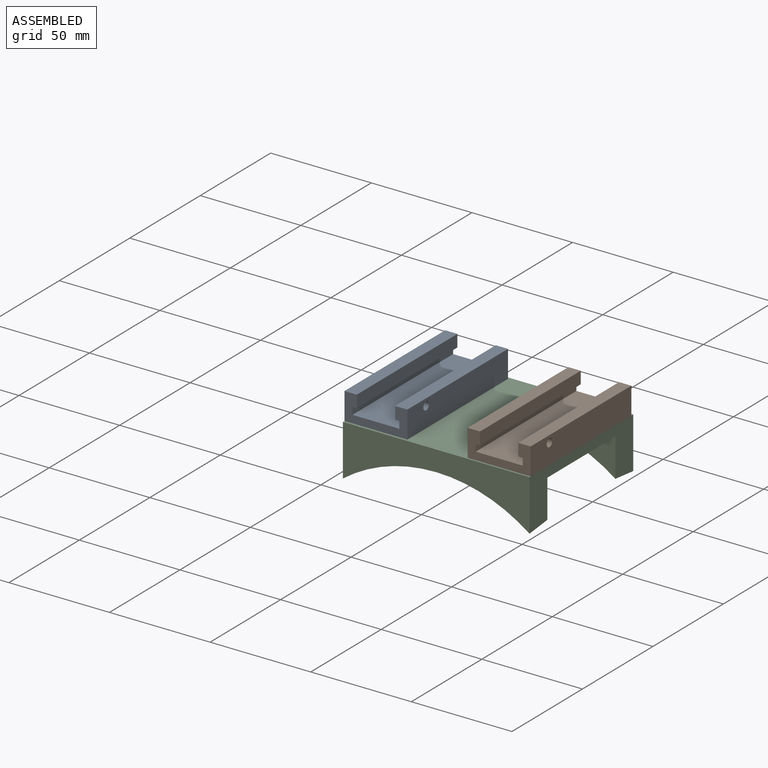
[diagram: assembled view]
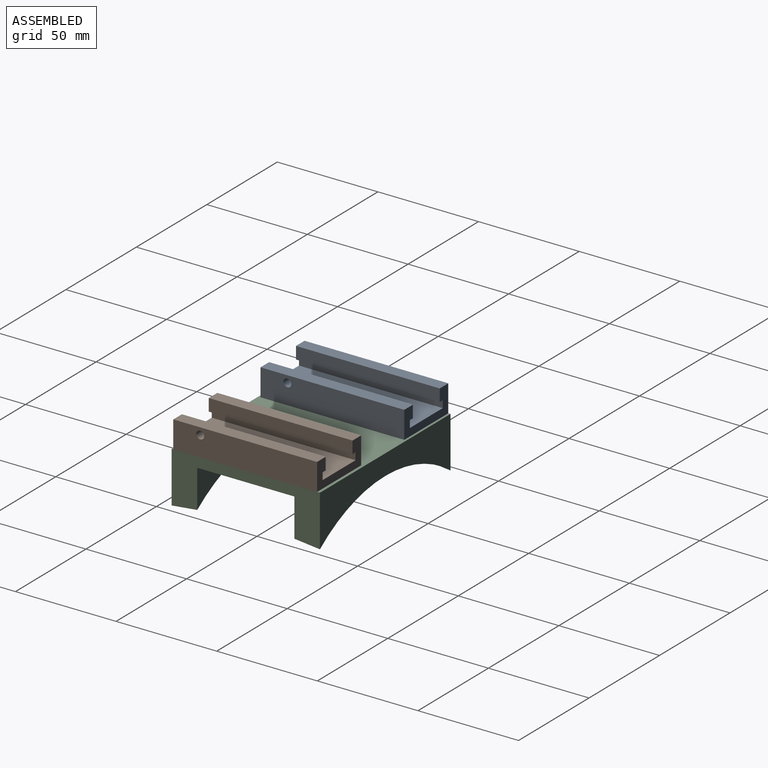
[diagram: assembled view, second angle]
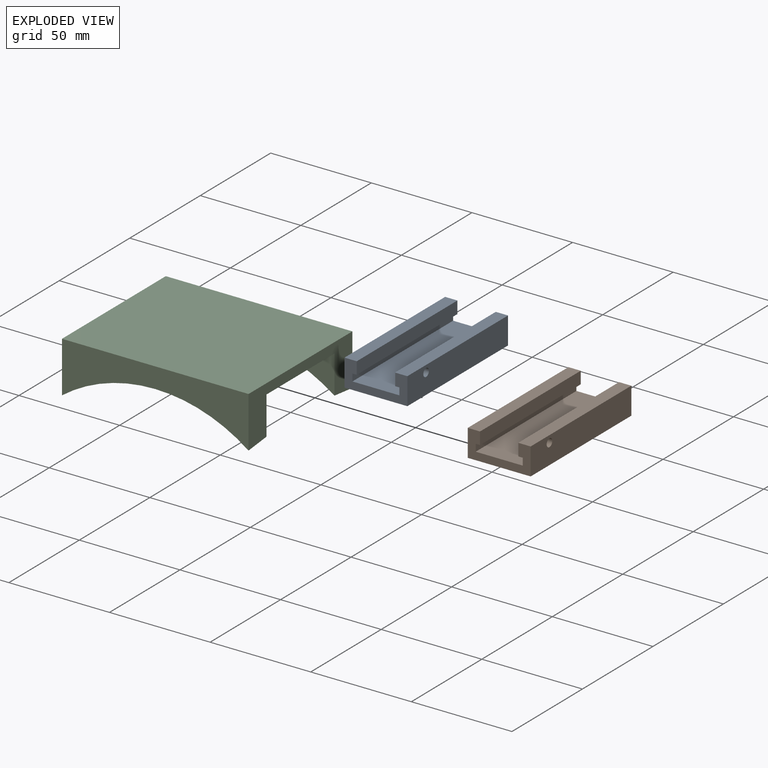
[diagram: exploded view]
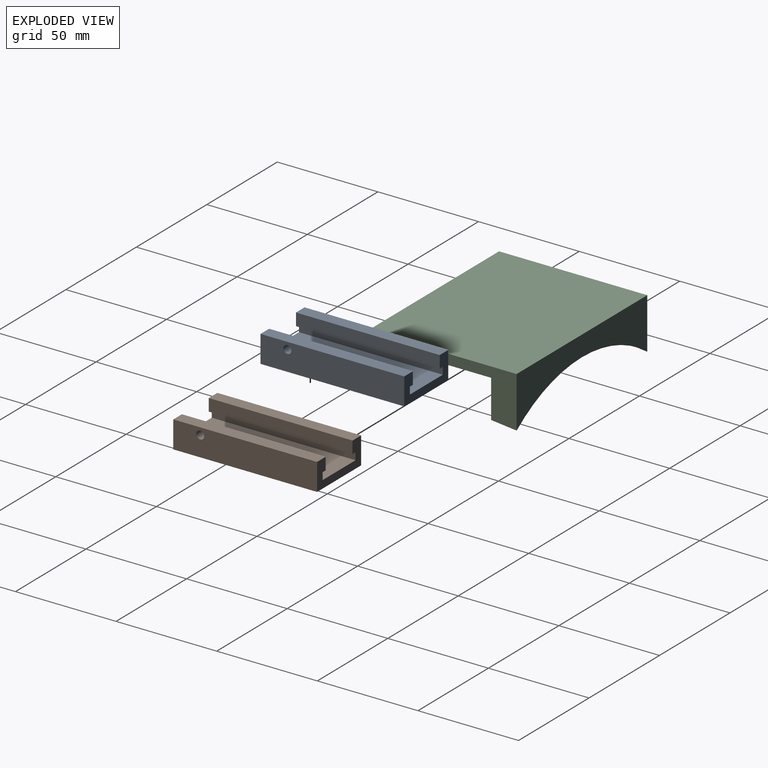
[diagram: exploded view, second angle]
ASSEMBLY  parts=3 mates=4
PART A: 15 faces, bbox 31.2x71.4x13.5 mm
  f0: plane 71.44x6.1mm, normal (1,0,0), area 435.5mm2, adj f1,f11,f12,f13
  f1: plane 71.44x6.1mm, normal (0,0,1), area 435.5mm2, adj f0,f2,f12,f13
  f2: plane 71.44x13.46mm, normal (-1,0,0), area 961.7mm2, adj f1,f3,f12,f13
  f3: plane 71.44x31.24mm, normal (0,0,-1), area 2231.9mm2, adj f2,f4,f12,f13
  f4: plane 71.44x13.46mm, normal (1,0,0), area 949.4mm2, adj f3,f5,f12,f13,f14
  f5: plane 71.44x6.1mm, normal (0,0,1), area 435.5mm2, adj f4,f6,f12,f13
  f6: plane 71.44x6.1mm, normal (-1,0,0), area 423.2mm2, adj f5,f7,f12,f13,f14
  f7: plane 71.44x2.16mm, normal (0,0,-1), area 154.2mm2, adj f6,f8,f12,f13
  f8: plane 71.44x3.56mm, normal (-1,0,0), area 254mm2, adj f7,f9,f12,f13
  f9: plane 71.44x23.37mm, normal (0,0,1), area 1669.4mm2, adj f8,f10,f12,f13
  f10: plane 71.44x3.56mm, normal (1,0,0), area 254mm2, adj f9,f11,f12,f13
  f11: plane 71.44x2.16mm, normal (0,0,-1), area 154.2mm2, adj f0,f10,f12,f13
  f12: plane 31.24x13.46mm, normal (0,-1,0), area 221.4mm2, adj f0,f1,f2,f3,f4,f5,f6,f7
  f13: plane 31.24x13.46mm, normal (0,1,0), area 221.4mm2, adj f0,f1,f2,f3,f4,f5,f6,f7
  f14: cylinder r=1.98mm len=6.1mm, axis (1,0,0), area 75.9mm2, adj f4,f6
PART B: same geometry as A
PART C: 10 faces, bbox 94x73.7x25.4 mm
  f0: plane 92.71x25.4mm, normal (0,-1,0), area 1392.8mm2, adj f2,f3,f4,f9
  f1: plane 92.71x25.4mm, normal (0,1,0), area 1392.8mm2, adj f2,f3,f4,f8
  f2: plane 73.67x25.41mm, normal (-1,0,0), area 872.8mm2, adj f0,f1,f4,f5,f6,f7,f8,f9
  f3: plane 73.67x25.41mm, normal (1,0,0), area 872.8mm2, adj f0,f1,f4,f5,f6,f7,f8,f9
  f4: plane 92.71x73.66mm, normal (0,0,1), area 6829mm2, adj f0,f1,f2,f3
  f5: plane 92.71x48.26mm, normal (0,0,-1), area 4474.2mm2, adj f2,f3,f6,f7
  f6: plane 92.71x18.95mm, normal (0,-1,0), area 811.7mm2, adj f2,f3,f5,f8
  f7: plane 92.71x18.95mm, normal (0,1,0), area 811.7mm2, adj f2,f3,f5,f9
  f8: cone r=78.12mm half-angle=5deg, axis (0,-1,0), area 1264mm2, adj f1,f2,f3,f6
  f9: cone r=78.12mm half-angle=5deg, axis (0,1,0), area 1264mm2, adj f0,f2,f3,f7
PLACE A t=(-40.9,29.38,-1.54)mm
PLACE B t=(20.57,29.09,-1.54)mm
PLACE C t=(2.54,-6.33,-7.89)mm
MATE planar B.f4 <-> C.f3  axis (1,0,0) through (48.89,-6.33,3.88)mm
MATE planar A.f3 <-> C.f4  axis (0,0,-1) through (-12.57,-42.05,-2.81)mm
MATE planar B.f3 <-> C.f4  axis (0,0,-1) through (33.27,-6.63,-2.81)mm
MATE planar A.f2 <-> C.f2  axis (-1,0,0) through (-43.82,-6.33,3.92)mm
